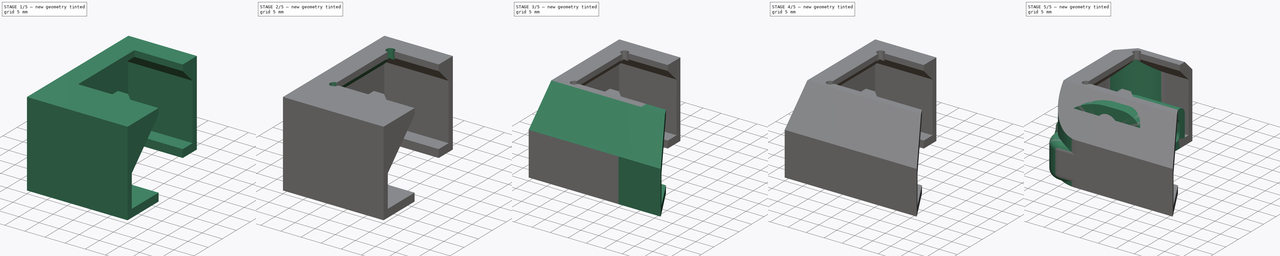
[diagram: build sequence overview — one tinted view per stage of 5, left to right]
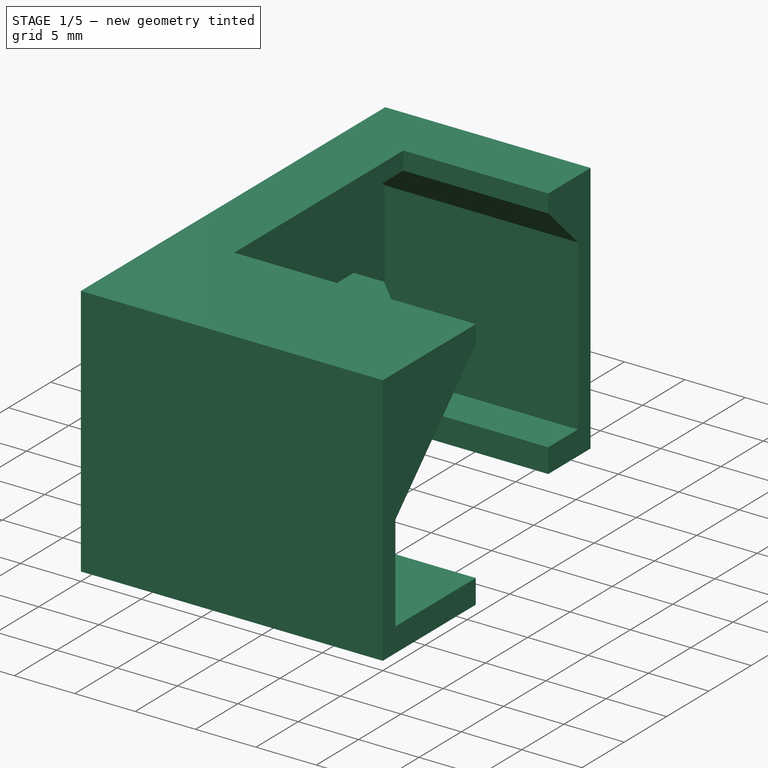
[diagram: stage 1 of 5 — iso view after this stage's code; geometry added in this stage tinted green]
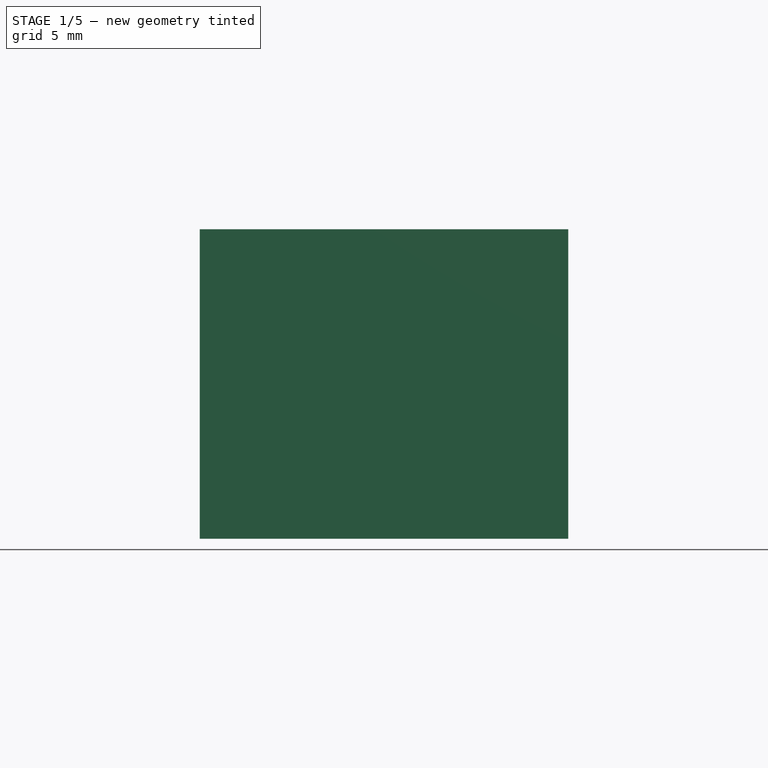
[diagram: stage 1 of 5 — front view after this stage's code; geometry added in this stage tinted green]
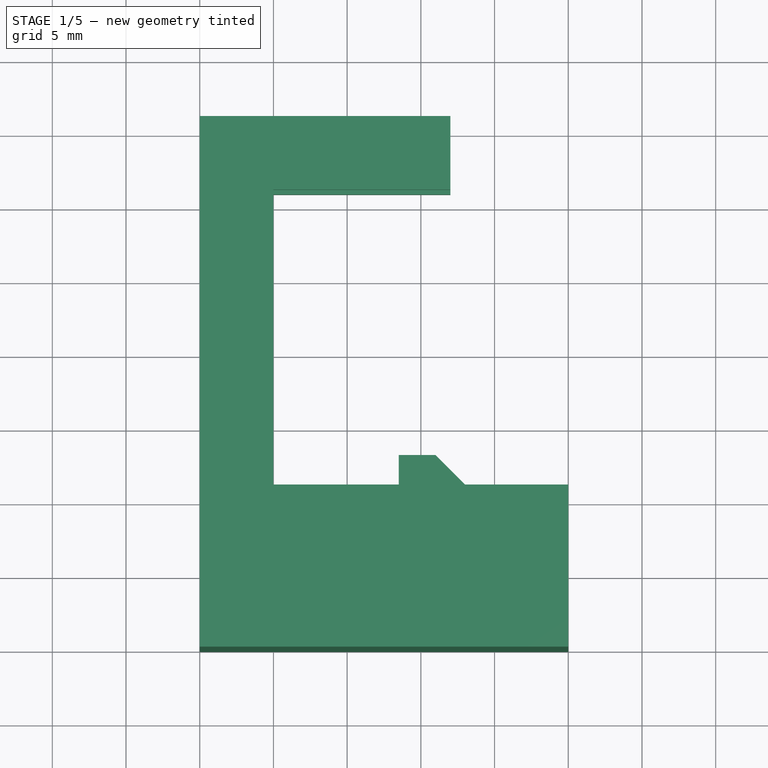
[diagram: stage 1 of 5 — top view after this stage's code; geometry added in this stage tinted green]
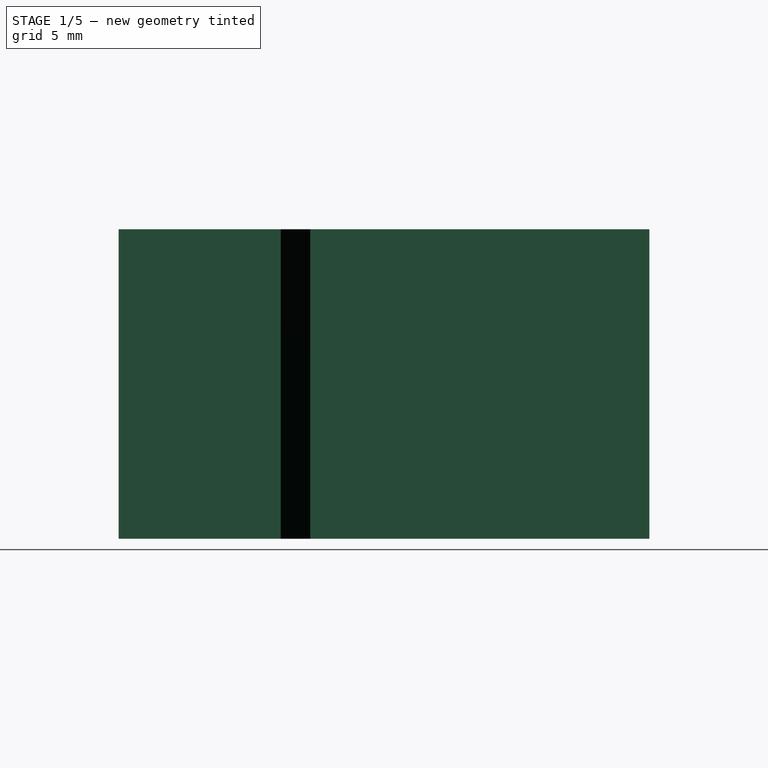
[diagram: stage 1 of 5 — right view after this stage's code; geometry added in this stage tinted green]
FCSTD DOCUMENT  (FreeCAD 0.17R13662 (Git))
Label: Z_max_cable_cover_v1.3
License: CreativeCommons Attribution-ShareAlike
LicenseURL: http://creativecommons.org/licenses/by-sa/4.0/
objects: Sketcher::SketchObject×10, PartDesign::Pocket×7, PartDesign::Pad×5, PartDesign::Chamfer×4, Part::FeaturePython×1, PartDesign::Fillet×1, PartDesign::Body×1
note: 41 computed .brp shape members not serialized (recipe doc carries the construction recipe); baked Part::Feature solids carry a one-line shape summary decoded from their .brp

FEATURE [Sketcher::SketchObject] Sketch
  MapMode = 5
  Support = -> [XY_Plane]
  sketch-geometry (8):
    g0: LineSegment StartX=25 StartY=0 StartZ=0 EndX=25 EndY=11 EndZ=0
    g1: LineSegment StartX=25 StartY=11 StartZ=0 EndX=5 EndY=11 EndZ=0
    g2: LineSegment StartX=5 StartY=11 StartZ=0 EndX=5 EndY=31 EndZ=0
    g3: LineSegment StartX=5 StartY=31 StartZ=0 EndX=17 EndY=31 EndZ=0
    g4: LineSegment StartX=17 StartY=31 StartZ=0 EndX=17 EndY=36 EndZ=0
    g5: LineSegment StartX=17 StartY=36 StartZ=0 EndX=0 EndY=36 EndZ=0
    g6: LineSegment StartX=0 StartY=36 StartZ=0 EndX=0 EndY=0 EndZ=0
    g7: LineSegment StartX=0 StartY=0 StartZ=0 EndX=25 EndY=0 EndZ=0
  constraints (23):
    c: Coincident(g0,g1)
    c: Coincident(g1,g2)
    c: Coincident(g2,g3)
    c: Coincident(g3,g4)
    c: Coincident(g4,g5)
    c: Coincident(g5,g6)
    c: Coincident(g6,g7)
    c: Coincident(g7,g0)
    c: Coincident(g6,g-1)
    c: Horizontal(g7)
    c: Vertical(g6)
    c: Vertical(g2)
    c: Vertical(g0)
    c: Vertical(g4)
    c: Horizontal(g5)
    c: Horizontal(g3)
    c: Horizontal(g1)
    c: DistanceY(g0,g0) = 11
    c: DistanceY(g4,g4) = 5
    c: DistanceX(g5,g5) = 17
    c: DistanceX(g7,g7) = 25
    c: DistanceX(g1,g1) = 20
    c: Distance(g2) = 20
FEATURE [PartDesign::Pad] Pad
  Length = 25
  Length2 = 100
  Profile = -> Sketch
  Type = 0
FEATURE [Sketcher::SketchObject] Sketch001
  ExternalGeometry = -> [Pad]
  MapMode = 5
  Placement = pos=(25,0,0) rot=(0.57735,0.57735,0.57735;2.0944rad)
  Support = -> [Pad]
  sketch-geometry (6):
    g0: LineSegment StartX=34.5 StartY=16 StartZ=0 EndX=34.5 EndY=2 EndZ=0
    g1: LineSegment StartX=34.5 StartY=2 StartZ=0 EndX=1.5 EndY=2 EndZ=0
    g2: LineSegment StartX=1.5 StartY=2 StartZ=0 EndX=1.5 EndY=10 EndZ=0
    g3: LineSegment StartX=1.5 StartY=10 StartZ=0 EndX=11 EndY=19.5 EndZ=0
    g4: LineSegment StartX=11 StartY=19.5 StartZ=0 EndX=31 EndY=19.5 EndZ=0
    g5: LineSegment StartX=31 StartY=19.5 StartZ=0 EndX=34.5 EndY=16 EndZ=0
  constraints (18):
    c: Coincident(g0,g1)
    c: Coincident(g1,g2)
    c: Horizontal(g1)
    c: Vertical(g0)
    c: Vertical(g2)
    c: DistanceX(g0,g-4) = -3.5
    c: DistanceY(g0,g-4) = -2
    c: DistanceX(g1,g1) = 33
    c: DistanceY(g2,g2) = 8
    c: Coincident(g3,g4)
    c: Coincident(g4,g5)
    c: Coincident(g0,g5)
    c: Coincident(g2,g3)
    c: Horizontal(g4)
    c: Angle(g3) = 0.785398
    c: PointOnObject(g3,g-3)
    c: PointOnObject(g4,g-4)
    c: Angle(g5) = -0.785398
FEATURE [Sketcher::SketchObject] Sketch003
  MapMode = 5
  Placement = pos=(25,0,0) rot=(0.57735,0.57735,0.57735;2.0944rad)
  sketch-geometry (4):
    g0: LineSegment StartX=0 StartY=25 StartZ=0 EndX=36 EndY=25 EndZ=0
    g1: LineSegment StartX=36 StartY=25 StartZ=0 EndX=36 EndY=21 EndZ=0
    g2: LineSegment StartX=36 StartY=21 StartZ=0 EndX=0 EndY=21 EndZ=0
    g3: LineSegment StartX=0 StartY=21 StartZ=0 EndX=0 EndY=25 EndZ=0
  constraints (12):
    c: Coincident(g0,g1)
    c: Coincident(g1,g2)
    c: Coincident(g2,g3)
    c: Coincident(g3,g0)
    c: Horizontal(g0)
    c: Horizontal(g2)
    c: Vertical(g1)
    c: Vertical(g3)
    c: DistanceY(g3,g3) = 4
    c: DistanceX(g0) = 0
    c: DistanceY(g0) = 25
    c: DistanceX(g2,g2) = 36
FEATURE [PartDesign::Pocket] Pocket
  BaseFeature = -> Pad
  Length = 24
  Length2 = 100
  Profile = -> Sketch001
  Type = 0
FEATURE [Sketcher::SketchObject] Sketch002
  MapMode = 5
  Placement = pos=(0,0,25) rot=(0,0,1;0rad)
  Support = -> [Pocket]
  sketch-geometry (4):
    g0: LineSegment StartX=18 StartY=11 StartZ=0 EndX=13.5 EndY=11 EndZ=0
    g1: LineSegment StartX=13.5 StartY=11 StartZ=0 EndX=13.5 EndY=13 EndZ=0
    g2: LineSegment StartX=13.5 StartY=13 StartZ=0 EndX=16 EndY=13 EndZ=0
    g3: LineSegment StartX=16 StartY=13 StartZ=0 EndX=18 EndY=11 EndZ=0
  constraints (12):
    c: Coincident(g0,g1)
    c: Coincident(g1,g2)
    c: Coincident(g2,g3)
    c: Coincident(g3,g0)
    c: Horizontal(g0)
    c: Horizontal(g2)
    c: Vertical(g1)
    c: Angle(g3) = -0.785398
    c: DistanceY(g0) = 11
    c: DistanceY(g1,g1) = 2
    c: DistanceX(g0) = 13.5
    c: DistanceX(g2,g2) = 2.5
FEATURE [PartDesign::Pad] Pad001
  BaseFeature = -> Pocket
  Length = 25
  Length2 = 100
  Profile = -> Sketch002
  Reversed = true
  Type = 0
FEATURE [PartDesign::Pocket] Pocket001
  BaseFeature = -> Pad001
  Length = 5
  Length2 = 100
  Profile = -> Sketch003
  Type = 1
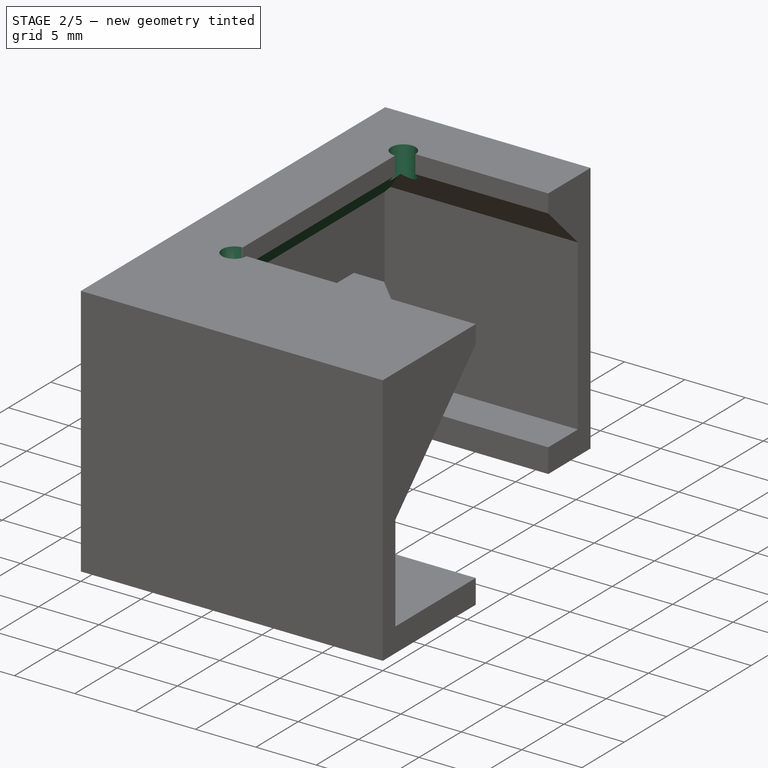
[diagram: stage 2 of 5 — iso view after this stage's code; geometry added in this stage tinted green]
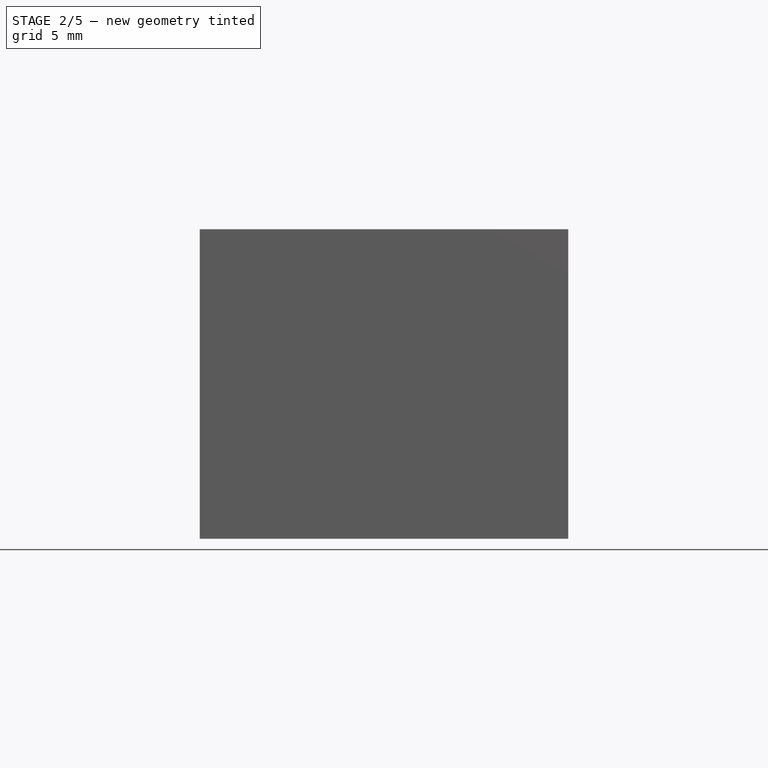
[diagram: stage 2 of 5 — front view after this stage's code; geometry added in this stage tinted green]
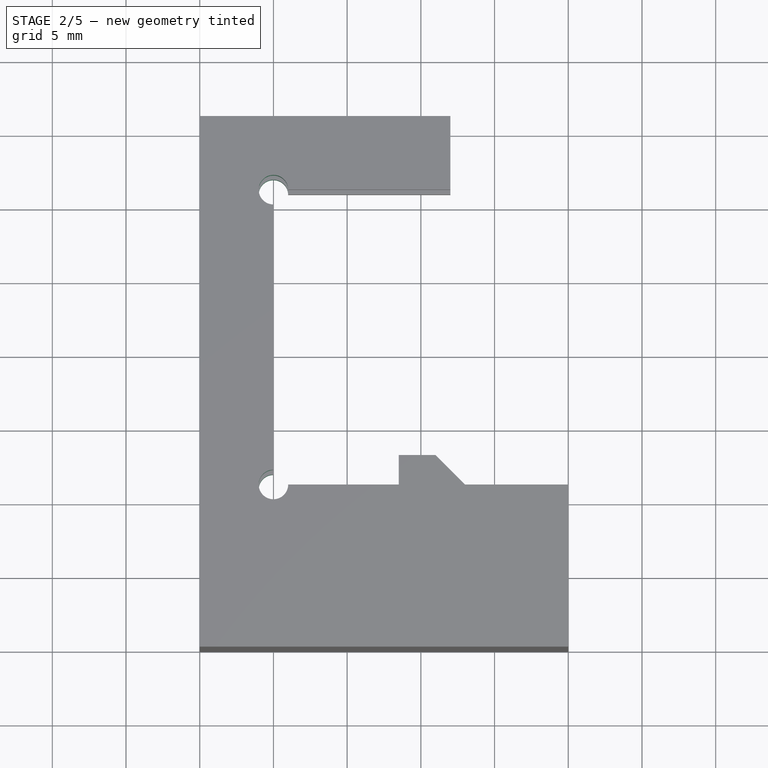
[diagram: stage 2 of 5 — top view after this stage's code; geometry added in this stage tinted green]
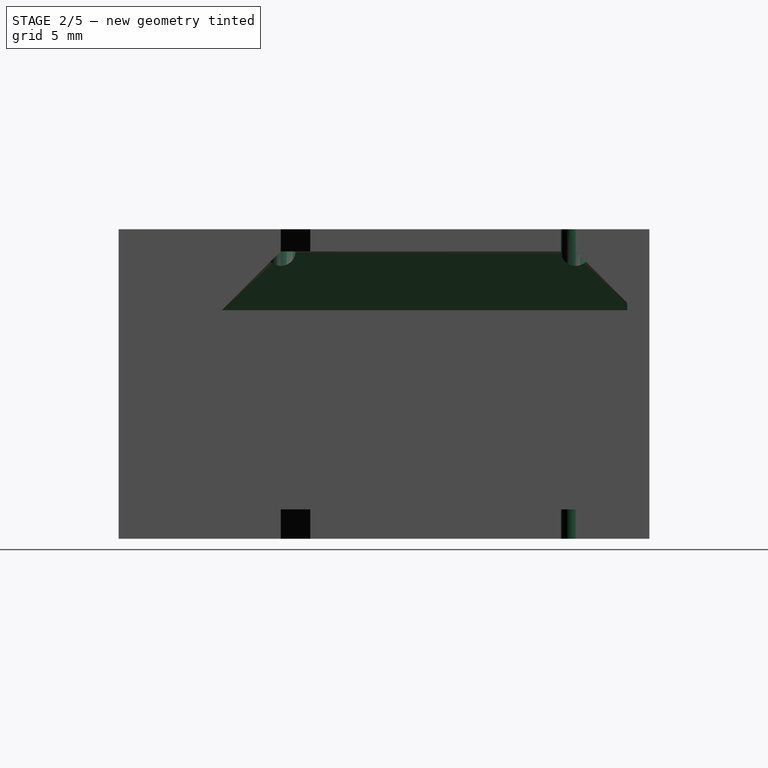
[diagram: stage 2 of 5 — right view after this stage's code; geometry added in this stage tinted green]
FEATURE [Sketcher::SketchObject] Sketch005
  MapMode = 5
  Placement = pos=(0,0,21) rot=(0,0,1;0rad)
  Support = -> [Pocket001]
  sketch-geometry (2):
    g0: Circle CenterX=5 CenterY=11 CenterZ=0 NormalX=0 NormalY=0 NormalZ=1 AngleXU=0 Radius=1
    g1: Circle CenterX=5 CenterY=31 CenterZ=0 NormalX=0 NormalY=0 NormalZ=1 AngleXU=0 Radius=1
  constraints (6):
    c: Radius(g0) = 1
    c: Equal(g0,g1)
    c: DistanceX(g0) = 5
    c: DistanceY(g0) = 11
    c: DistanceY(g0,g1) = 20
    c: DistanceX(g0,g1) = 0
FEATURE [Sketcher::SketchObject] Sketch006
  ExternalGeometry = -> [Pad001]
  MapMode = 5
  Placement = pos=(25,0,0) rot=(0.57735,0.57735,0.57735;2.0944rad)
  Support = -> [Pad001]
  sketch-geometry (4):
    g0: LineSegment StartX=11 StartY=19.5 StartZ=0 EndX=13 EndY=19.5 EndZ=0
    g1: LineSegment StartX=13 StartY=19.5 StartZ=0 EndX=13 EndY=2 EndZ=0
    g2: LineSegment StartX=13 StartY=2 StartZ=0 EndX=11 EndY=2 EndZ=0
    g3: LineSegment StartX=11 StartY=2 StartZ=0 EndX=11 EndY=19.5 EndZ=0
  constraints (11):
    c: Coincident(g0,g1)
    c: Coincident(g1,g2)
    c: Coincident(g2,g3)
    c: Coincident(g3,g0)
    c: Horizontal(g0)
    c: Horizontal(g2)
    c: Vertical(g1)
    c: Vertical(g3)
    c: Coincident(g2,g-3)
    c: Coincident(g0,g-3)
    c: DistanceX(g0,g0) = 2
FEATURE [PartDesign::Pocket] Pocket002
  BaseFeature = -> Pocket001
  Length = 12
  Length2 = 100
  Profile = -> Sketch006
  Type = 0
FEATURE [PartDesign::Chamfer] Chamfer
  Base = -> Pocket002 [Edge76]
  BaseFeature = -> Pocket002
  Size = 3.99
FEATURE [PartDesign::Pocket] Pocket003
  BaseFeature = -> Chamfer
  Length = 5
  Length2 = 100
  Profile = -> Sketch005
  Type = 1
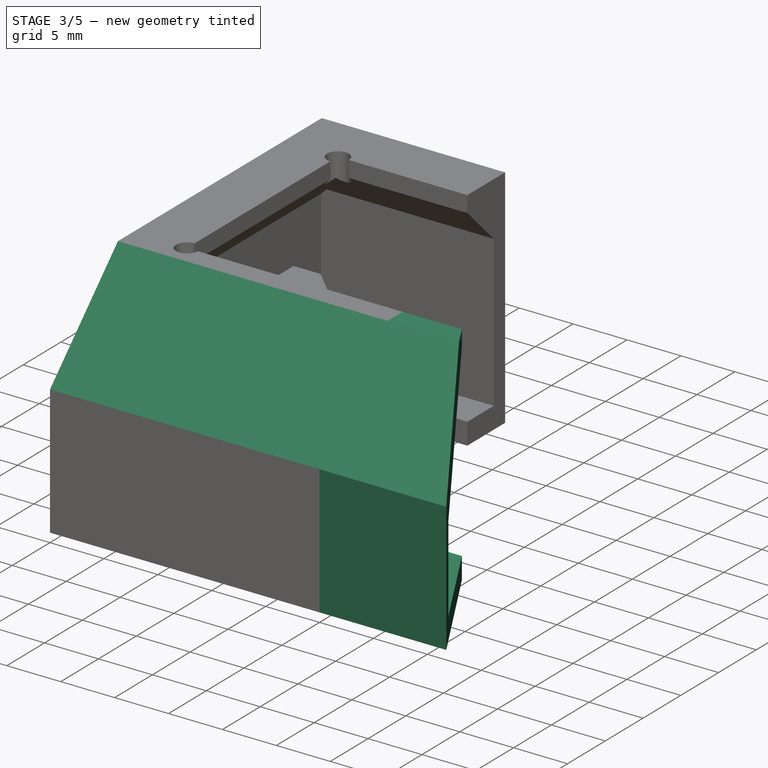
[diagram: stage 3 of 5 — iso view after this stage's code; geometry added in this stage tinted green]
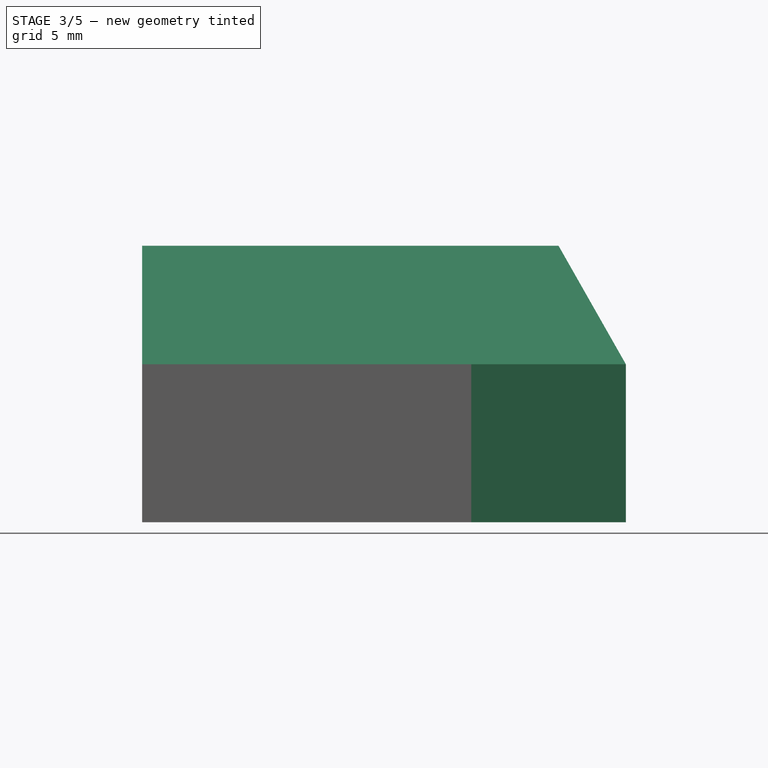
[diagram: stage 3 of 5 — front view after this stage's code; geometry added in this stage tinted green]
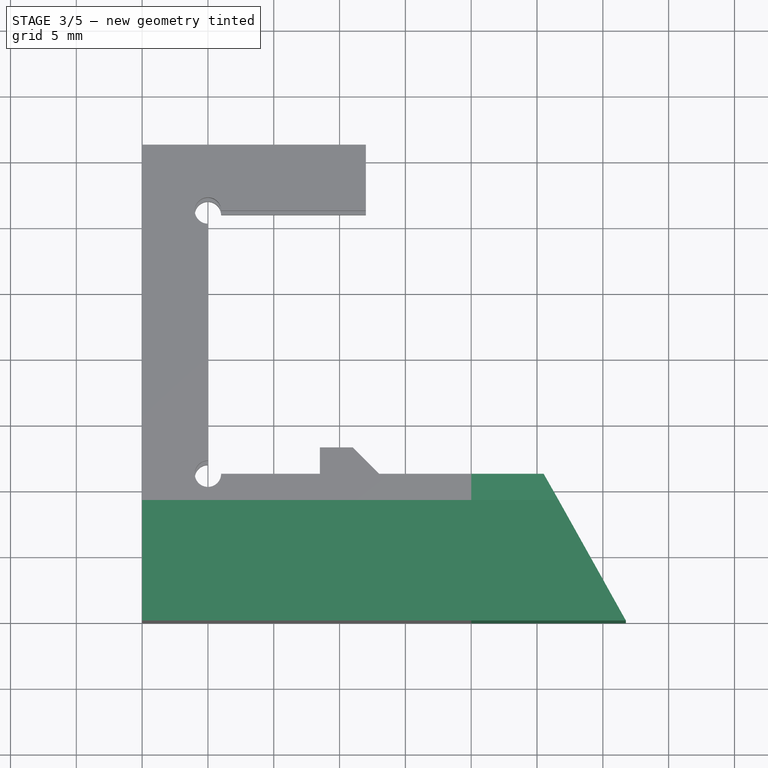
[diagram: stage 3 of 5 — top view after this stage's code; geometry added in this stage tinted green]
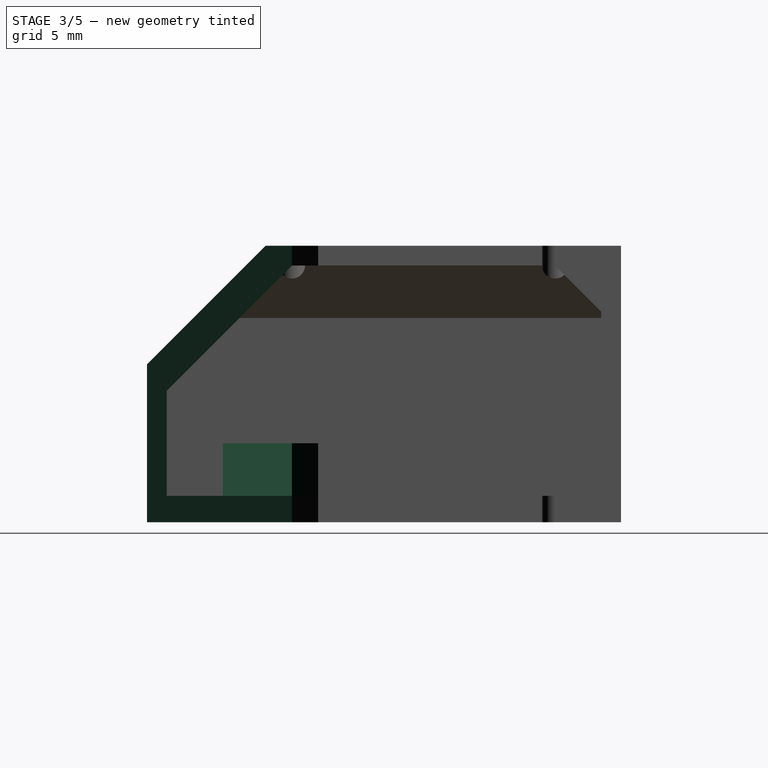
[diagram: stage 3 of 5 — right view after this stage's code; geometry added in this stage tinted green]
FEATURE [Sketcher::SketchObject] Sketch007
  ExternalGeometry = -> [Pocket003]
  MapMode = 5
  Placement = pos=(0,0,2) rot=(0,0,1;0rad)
  Support = -> [Pocket003]
  sketch-geometry (6):
    g0: LineSegment StartX=13.5 StartY=5.75 StartZ=0 EndX=13.5 EndY=13 EndZ=0
    g1: LineSegment StartX=13.5 StartY=13 StartZ=0 EndX=16 EndY=13 EndZ=0
    g2: LineSegment StartX=16 StartY=13 StartZ=0 EndX=18 EndY=11 EndZ=0
    g3: LineSegment StartX=18 StartY=11 StartZ=0 EndX=20 EndY=11 EndZ=0
    g4: LineSegment StartX=20 StartY=11 StartZ=0 EndX=20 EndY=5.75 EndZ=0
    g5: LineSegment StartX=20 StartY=5.75 StartZ=0 EndX=13.5 EndY=5.75 EndZ=0
  constraints (15):
    c: Coincident(g0,g1)
    c: Coincident(g1,g2)
    c: Coincident(g2,g3)
    c: Coincident(g3,g4)
    c: Coincident(g4,g5)
    c: Coincident(g0,g5)
    c: Coincident(g0,g-4)
    c: Coincident(g1,g-5)
    c: Coincident(g2,g-5)
    c: Vertical(g0)
    c: Horizontal(g3)
    c: Horizontal(g5)
    c: Vertical(g4)
    c: DistanceX(g3,g3) = 2
    c: DistanceY(g-6,g4) = 4.25
FEATURE [PartDesign::Pad] Pad002
  BaseFeature = -> Pocket003
  Length = 4
  Length2 = 100
  Profile = -> Sketch007
  Type = 0
FEATURE [PartDesign::Pad] Pad003
  BaseFeature = -> Pad002
  Length = 11.75
  Length2 = 100
  Profile = -> Pad002 [Face4]
  Type = 0
FEATURE [Sketcher::SketchObject] Sketch008
  ExternalGeometry = -> [Pad003]
  MapMode = 5
  Placement = pos=(0,0,21) rot=(0,0,1;0rad)
  Support = -> [Pad003]
  sketch-geometry (3):
    g0: LineSegment StartX=36.75 StartY=0 StartZ=0 EndX=30.5 EndY=11 EndZ=0
    g1: LineSegment StartX=30.5 StartY=11 StartZ=0 EndX=36.75 EndY=11 EndZ=0
    g2: LineSegment StartX=36.75 StartY=11 StartZ=0 EndX=36.75 EndY=0 EndZ=0
  constraints (8):
    c: Coincident(g0,g1)
    c: Coincident(g1,g2)
    c: Coincident(g0,g2)
    c: Horizontal(g1)
    c: Coincident(g0,g-3)
    c: DistanceY(g2,g2) = 11
    c: DistanceX(g1,g1) = 6.25
    c: Vertical(g2)
FEATURE [PartDesign::Pocket] Pocket004
  BaseFeature = -> Pad003
  Length = 5
  Length2 = 100
  Profile = -> Sketch008
  Type = 1
FEATURE [Sketcher::SketchObject] Sketch011
  MapMode = 5
  Placement = pos=(0,0,0) rot=(0.57735,-0.57735,-0.57735;2.0944rad)
  sketch-geometry (3):
    g0: LineSegment StartX=0 StartY=12 StartZ=0 EndX=-9 EndY=21 EndZ=0
    g1: LineSegment StartX=-9 StartY=21 StartZ=0 EndX=0 EndY=21 EndZ=0
    g2: LineSegment StartX=0 StartY=21 StartZ=0 EndX=0 EndY=12 EndZ=0
  constraints (9):
    c: Coincident(g0,g1)
    c: Coincident(g1,g2)
    c: Coincident(g0,g2)
    c: PointOnObject(g0,g-2)
    c: Vertical(g2)
    c: Horizontal(g1)
    c: DistanceY(g0) = 12
    c: DistanceY(g2,g2) = 9
    c: Angle(g0) = 2.35619
FEATURE [PartDesign::Pocket] Pocket005
  BaseFeature = -> Pocket004
  Length = 5
  Length2 = 100
  Profile = -> Sketch011
  Type = 1
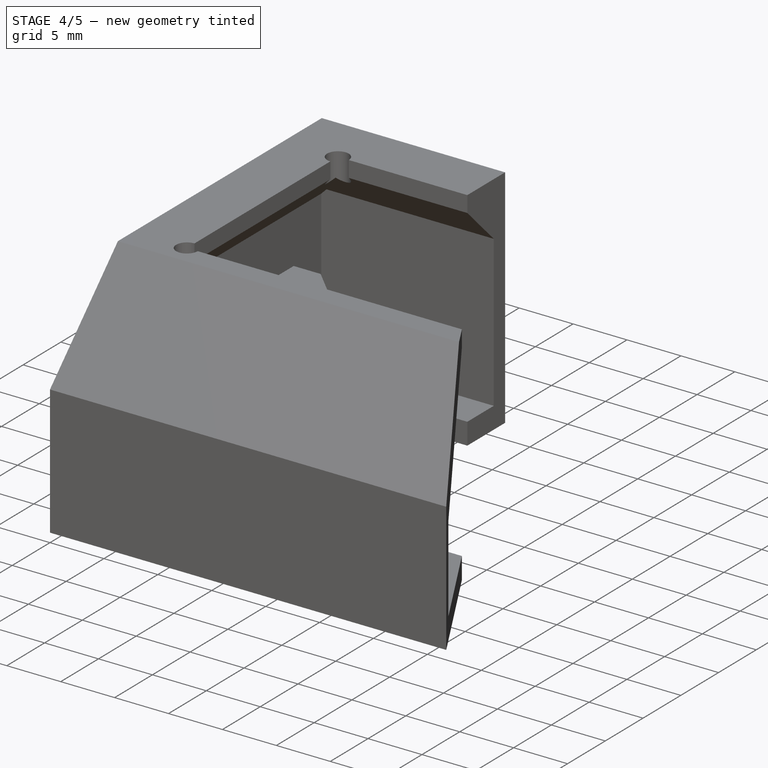
[diagram: stage 4 of 5 — iso view after this stage's code; geometry added in this stage tinted green]
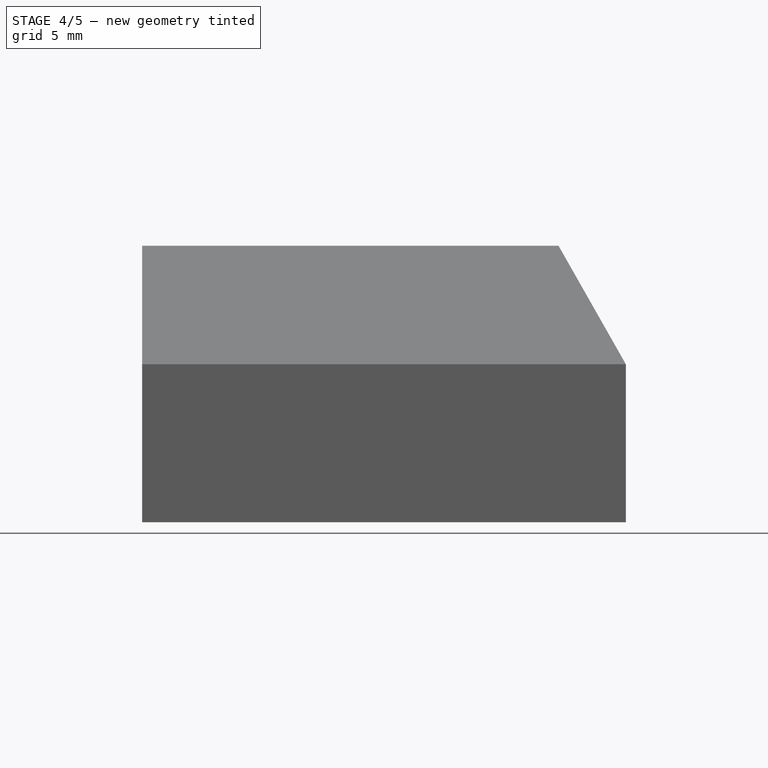
[diagram: stage 4 of 5 — front view after this stage's code; geometry added in this stage tinted green]
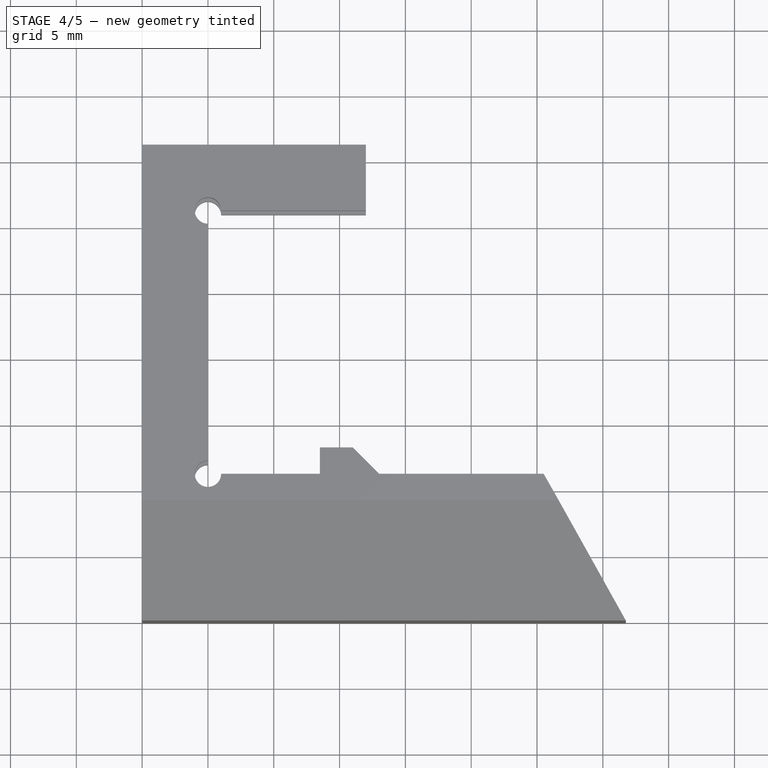
[diagram: stage 4 of 5 — top view after this stage's code; geometry added in this stage tinted green]
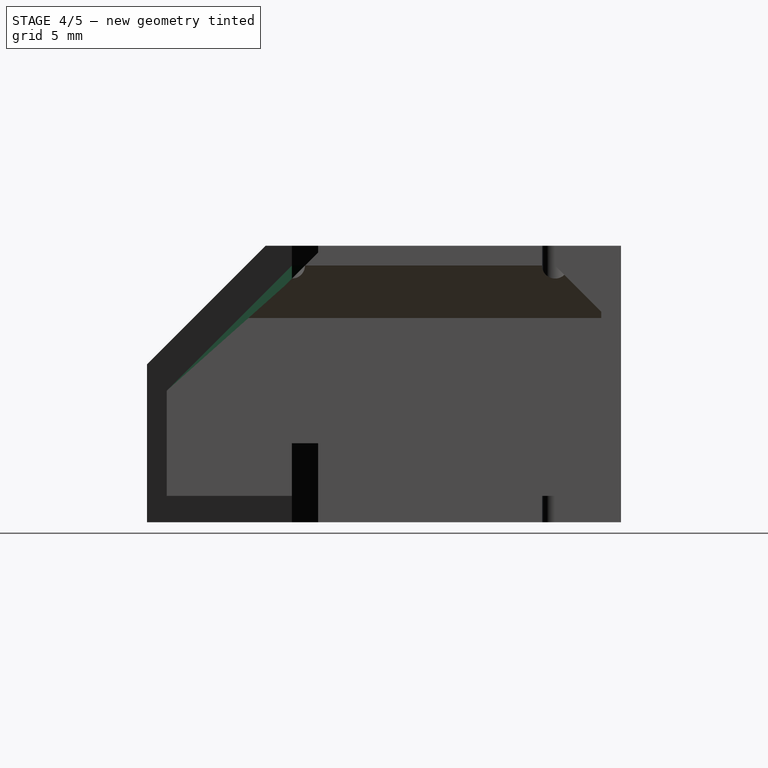
[diagram: stage 4 of 5 — right view after this stage's code; geometry added in this stage tinted green]
FEATURE [Sketcher::SketchObject] Sketch012
  ExternalGeometry = -> [Pocket005]
  MapMode = 5
  Placement = pos=(13.5,0,0) rot=(0.57735,-0.57735,-0.57735;2.0944rad)
  Support = -> [Pocket005]
  sketch-geometry (4):
    g0: LineSegment StartX=-12 StartY=19.5 StartZ=0 EndX=-10.5 EndY=18 EndZ=0
    g1: LineSegment StartX=-10.5 StartY=18 StartZ=0 EndX=-1.5 EndY=10 EndZ=0
    g2: LineSegment StartX=-1.5 StartY=10 StartZ=0 EndX=-11 EndY=19.5 EndZ=0
    g3: LineSegment StartX=-11 StartY=19.5 StartZ=0 EndX=-12 EndY=19.5 EndZ=0
  constraints (10):
    c: Coincident(g1,g2)
    c: Coincident(g2,g3)
    c: Coincident(g0,g3)
    c: Horizontal(g3)
    c: Coincident(g1,g-3)
    c: Coincident(g1,g0)
    c: Coincident(g2,g-4)
    c: Parallel(g0,g2)
    c: DistanceX(g3,g3) = 1
    c: DistanceY(g1,g1) = 8
FEATURE [PartDesign::Pad] Pad004
  BaseFeature = -> Pocket005
  Length = 4.5
  Length2 = 100
  Profile = -> Sketch012
  Reversed = true
  Type = 0
FEATURE [PartDesign::Pocket] Pocket006
  BaseFeature = -> Pad004
  Length = 5
  Length2 = 100
  Profile = -> Pad004 [Face57]
  Type = 0
FEATURE [PartDesign::Chamfer] Chamfer001
  Base = -> Pocket006 [Edge141]
  BaseFeature = -> Pocket006
  Size = 0.99
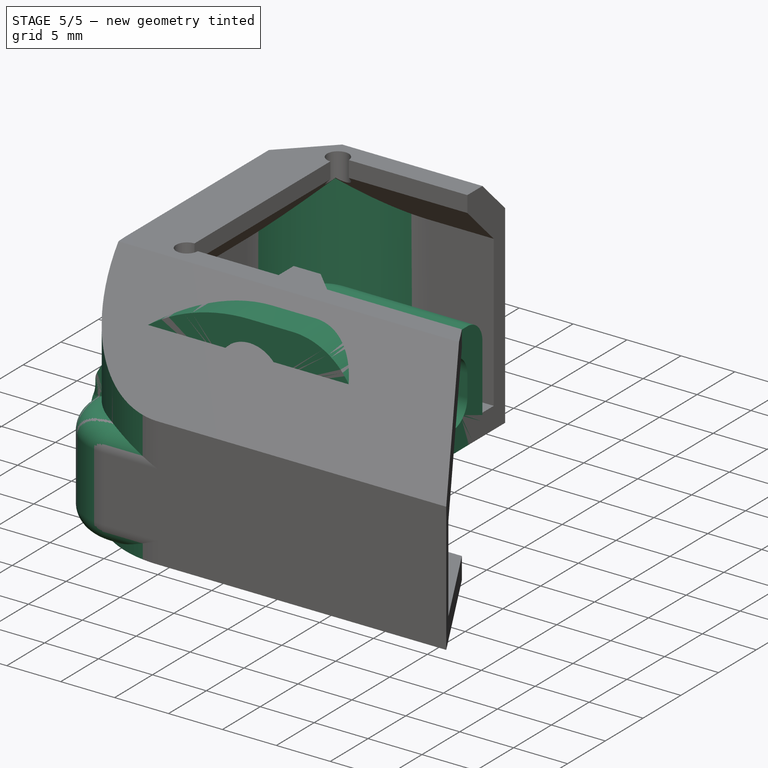
[diagram: stage 5 of 5 — iso view after this stage's code; geometry added in this stage tinted green]
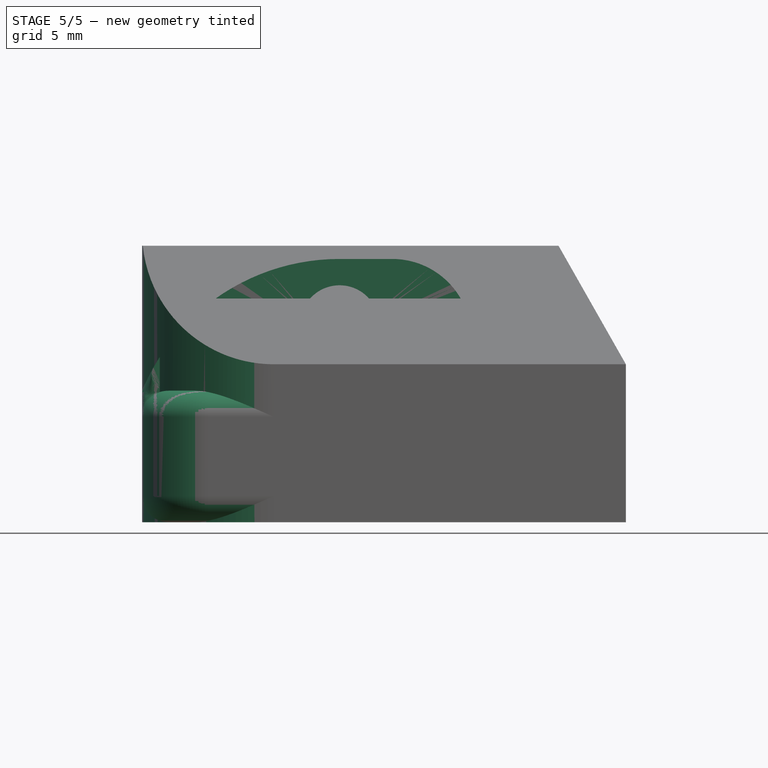
[diagram: stage 5 of 5 — front view after this stage's code; geometry added in this stage tinted green]
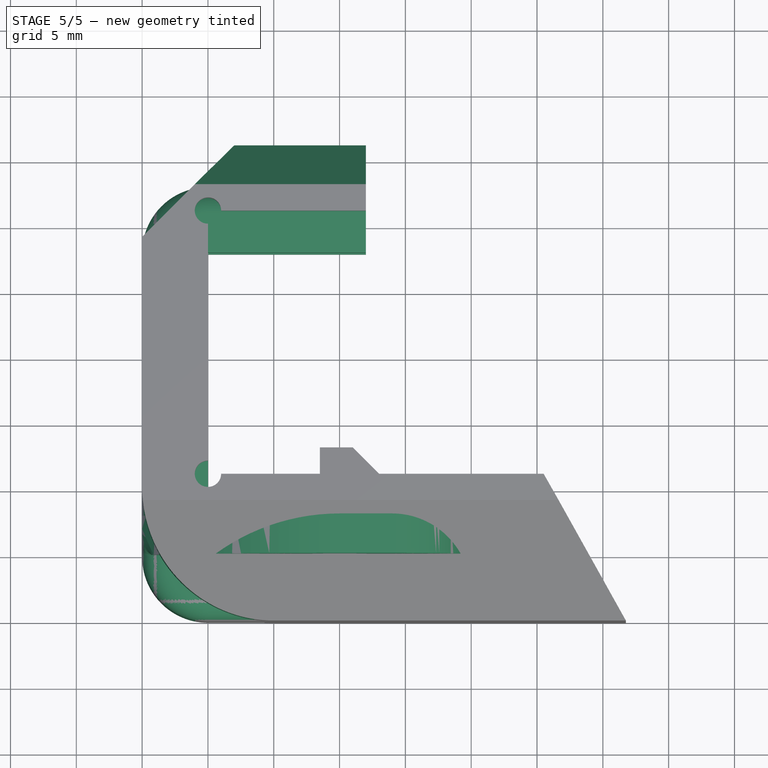
[diagram: stage 5 of 5 — top view after this stage's code; geometry added in this stage tinted green]
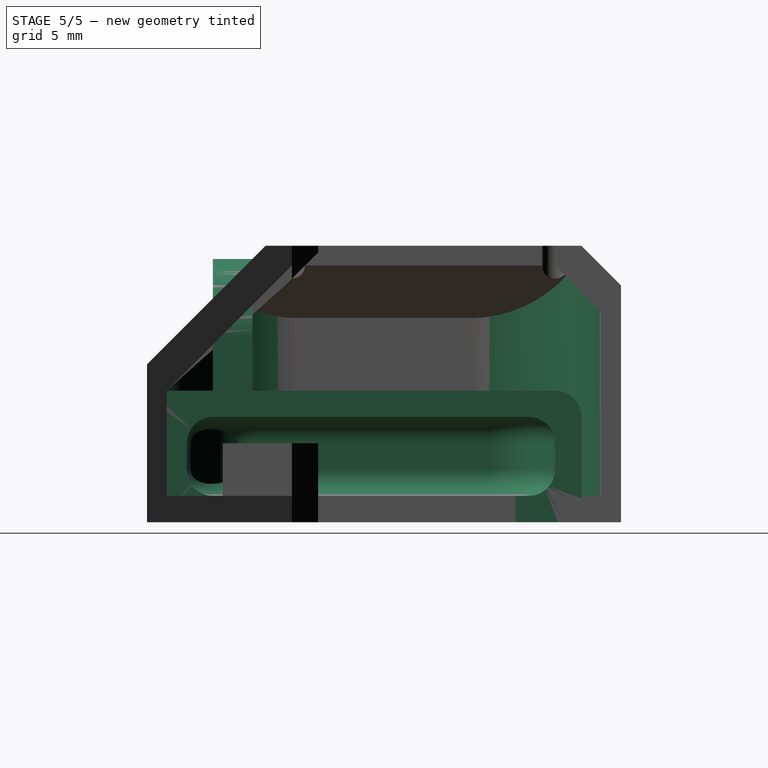
[diagram: stage 5 of 5 — right view after this stage's code; geometry added in this stage tinted green]
FEATURE [Part::FeaturePython] Z_max_cable_cover_01  # a2plus imported part (geometry in sourceFile) (typed FeaturePython)
  fixedPosition = true
  sourceFile = <userpath>/Projects/taz-quiver/Production_parts/Printed_parts/Z/Z_max_cable_cover.fcstd
  timeLastImport = 1.53356e+09
  updateColors = true
FEATURE [PartDesign::Fillet] Fillet
  Base = -> Chamfer001 [Edge117,Edge101,Edge54]
  BaseFeature = -> Chamfer001
  Radius = 10
FEATURE [PartDesign::Chamfer] Chamfer002
  Base = -> Fillet [Edge27]
  BaseFeature = -> Fillet
  Size = 7
FEATURE [PartDesign::Chamfer] Chamfer003
  Base = -> Chamfer002 [Edge4]
  BaseFeature = -> Chamfer002
  Size = 3
FEATURE [PartDesign::Body] Body
  Group = -> [Sketch,Pad,Sketch001,Sketch002,Sketch003,Sketch005,Pocket,Pad001,Pocket001,Sketch006,Pocket002,Chamfer,Pocket003,Sketch007,Pad002,Pad003,Sketch008,Pocket004,Sketch011,Pocket005,Sketch012,Pad004,Pocket006,Chamfer001,Fillet,Chamfer002,Chamfer003]
  Origin = -> Origin
  Tip = -> Chamfer003
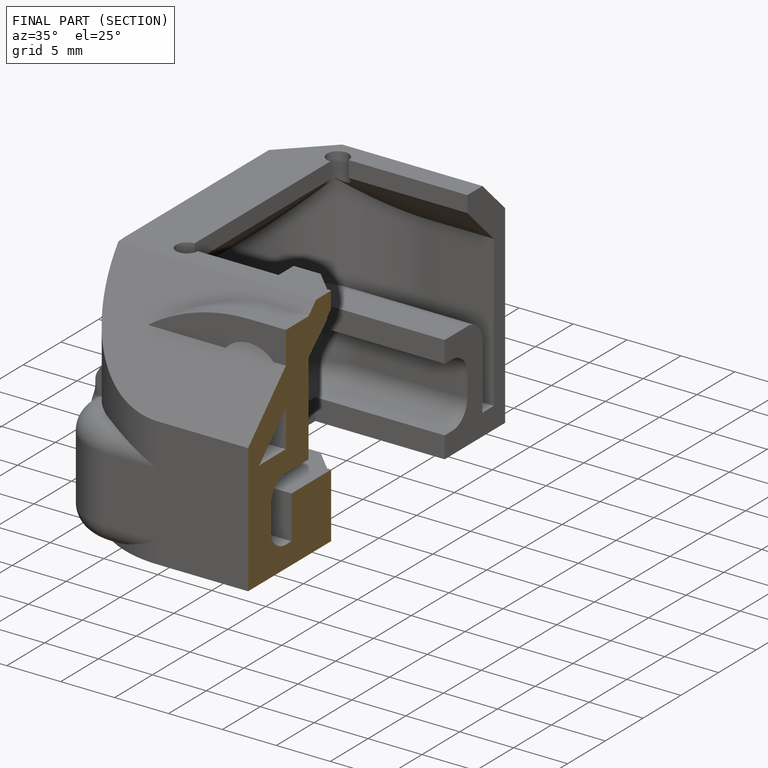
[diagram: finished part — half-section view (interior)]
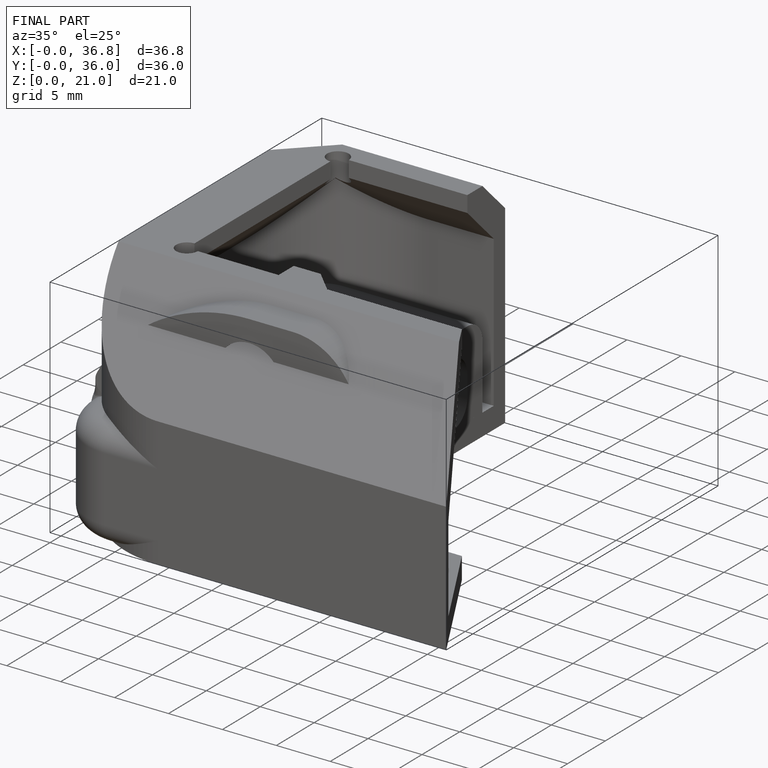
[diagram: finished part — iso view with bounding-box wireframe]
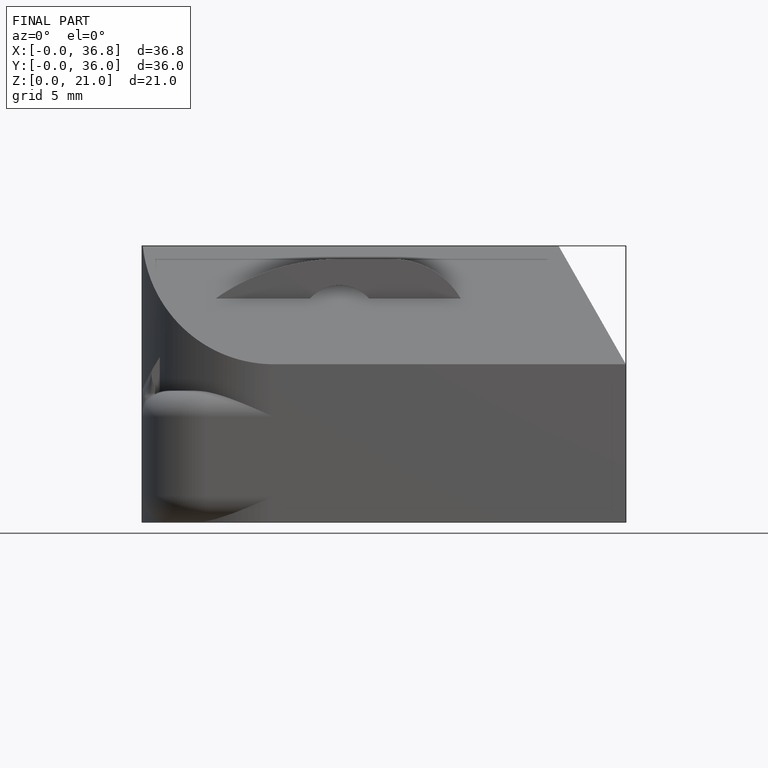
[diagram: finished part — front view with bounding-box wireframe]
